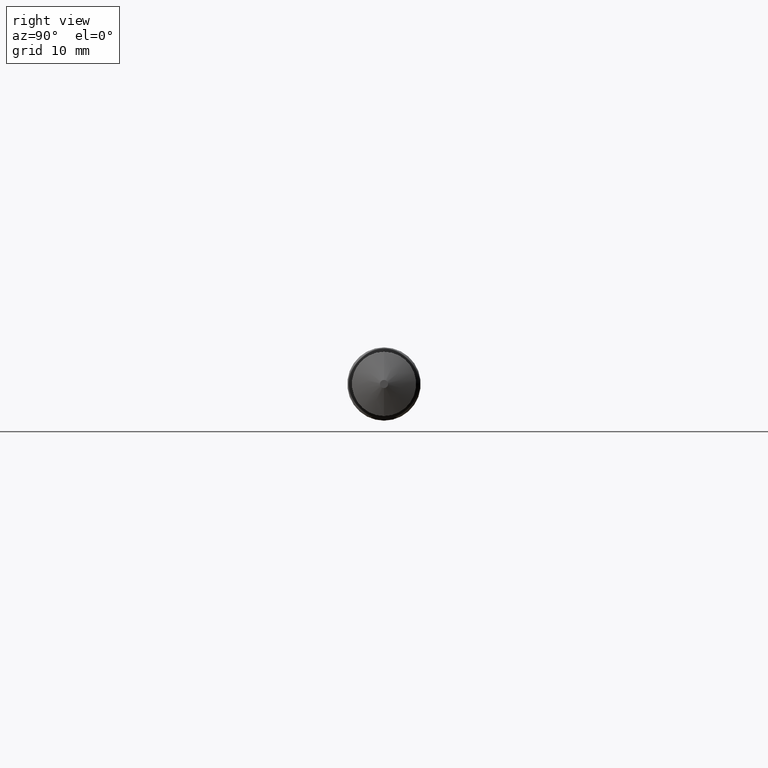
[diagram: clean part render]
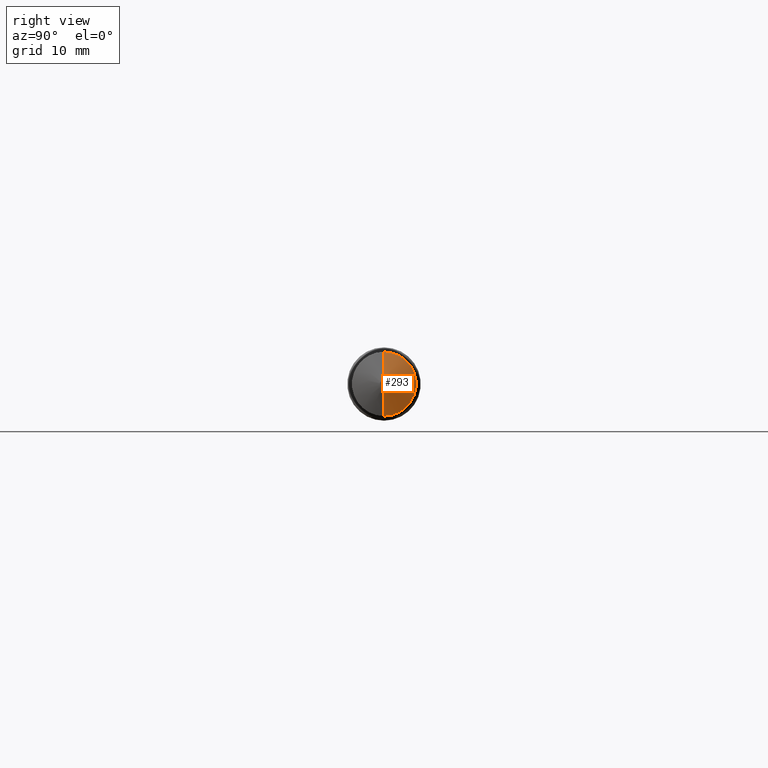
[diagram: same view with one face highlighted and labeled with its STEP entity id]
A machine part, right view. The second image highlights one B-rep face of the part: STEP entity #293.
In plain terms, the highlighted conical surface has half-angle 70 deg.
Its self-contained STEP definition (entity closure, byte-faithful):
#4 = ORIENTED_EDGE ( 'NONE', *, *, #209, .T. ) ;
#8 = EDGE_CURVE ( 'NONE', #303, #319, #145, .T. ) ;
#16 = LINE ( 'NONE', #251, #134 ) ;
#25 = FACE_OUTER_BOUND ( 'NONE', #154, .T. ) ;
#52 = DIRECTION ( 'NONE',  ( -0.3420201433256684354, 1.150791560227850516E-16, -0.9396926207859085389 ) ) ;
#55 = DIRECTION ( 'NONE',  ( 1.000000000000000000, -0.000000000000000000, -0.000000000000000000 ) ) ;
#57 = CARTESIAN_POINT ( 'NONE',  ( 3.110236220472441193, 9.521628863370716354E-18, -0.01750000000000038677 ) ) ;
#97 = ORIENTED_EDGE ( 'NONE', *, *, #341, .F. ) ;
#113 = CARTESIAN_POINT ( 'NONE',  ( 3.066377807243363840, 1.690012582823352312E-17, -0.1380000000000004001 ) ) ;
#127 = AXIS2_PLACEMENT_3D ( 'NONE', #260, #55, #290 ) ;
#134 = VECTOR ( 'NONE', #280, 39.37007874015748143 ) ;
#136 = CARTESIAN_POINT ( 'NONE',  ( 3.110236220472441193, 0.000000000000000000, 0.01750000000000038677 ) ) ;
#138 = EDGE_CURVE ( 'NONE', #331, #360, #16, .T. ) ;
#141 = AXIS2_PLACEMENT_3D ( 'NONE', #378, #320, #294 ) ;
#142 = DIRECTION ( 'NONE',  ( 0.000000000000000000, 0.000000000000000000, -1.000000000000000000 ) ) ;
#145 = LINE ( 'NONE', #167, #227 ) ;
#154 = EDGE_LOOP ( 'NONE', ( #97, #212, #4, #211 ) ) ;
#167 = CARTESIAN_POINT ( 'NONE',  ( 3.110236220472441193, 2.143131898507915367E-18, -0.01750000000000038677 ) ) ;
#197 = CARTESIAN_POINT ( 'NONE',  ( 3.066377807243363840, 0.000000000000000000, 0.1380000000000004001 ) ) ;
#202 = DIRECTION ( 'NONE',  ( 1.000000000000000000, -0.000000000000000000, -0.000000000000000000 ) ) ;
#209 = EDGE_CURVE ( 'NONE', #319, #360, #220, .T. ) ;
#211 = ORIENTED_EDGE ( 'NONE', *, *, #138, .F. ) ;
#212 = ORIENTED_EDGE ( 'NONE', *, *, #8, .T. ) ;
#220 = CIRCLE ( 'NONE', #301, 0.1380000000000003724 ) ;
#227 = VECTOR ( 'NONE', #52, 39.37007874015748143 ) ;
#232 = CARTESIAN_POINT ( 'NONE',  ( 3.066377807243363840, 0.000000000000000000, 0.000000000000000000 ) ) ;
#248 = CIRCLE ( 'NONE', #127, 0.01750000000000038677 ) ;
#251 = CARTESIAN_POINT ( 'NONE',  ( 3.110236220472441193, 0.000000000000000000, 0.01750000000000038677 ) ) ;
#260 = CARTESIAN_POINT ( 'NONE',  ( 3.110236220472441193, 0.000000000000000000, 0.000000000000000000 ) ) ;
#280 = DIRECTION ( 'NONE',  ( -0.3420201433256684354, 0.000000000000000000, 0.9396926207859085389 ) ) ;
#290 = DIRECTION ( 'NONE',  ( 0.000000000000000000, 0.000000000000000000, -1.000000000000000000 ) ) ;
#293 = ADVANCED_FACE ( 'NONE', ( #25 ), #323, .T. ) ;
#294 = DIRECTION ( 'NONE',  ( 0.000000000000000000, 0.000000000000000000, 1.000000000000000000 ) ) ;
#301 = AXIS2_PLACEMENT_3D ( 'NONE', #232, #202, #142 ) ;
#303 = VERTEX_POINT ( 'NONE', #57 ) ;
#319 = VERTEX_POINT ( 'NONE', #113 ) ;
#320 = DIRECTION ( 'NONE',  ( -1.000000000000000000, 0.000000000000000000, 0.000000000000000000 ) ) ;
#323 = CONICAL_SURFACE ( 'NONE', #141, 0.01750000000000038677, 1.221730476396031051 ) ;
#331 = VERTEX_POINT ( 'NONE', #136 ) ;
#341 = EDGE_CURVE ( 'NONE', #303, #331, #248, .T. ) ;
#360 = VERTEX_POINT ( 'NONE', #197 ) ;
#378 = CARTESIAN_POINT ( 'NONE',  ( 3.110236220472441193, 0.000000000000000000, 0.000000000000000000 ) ) ;